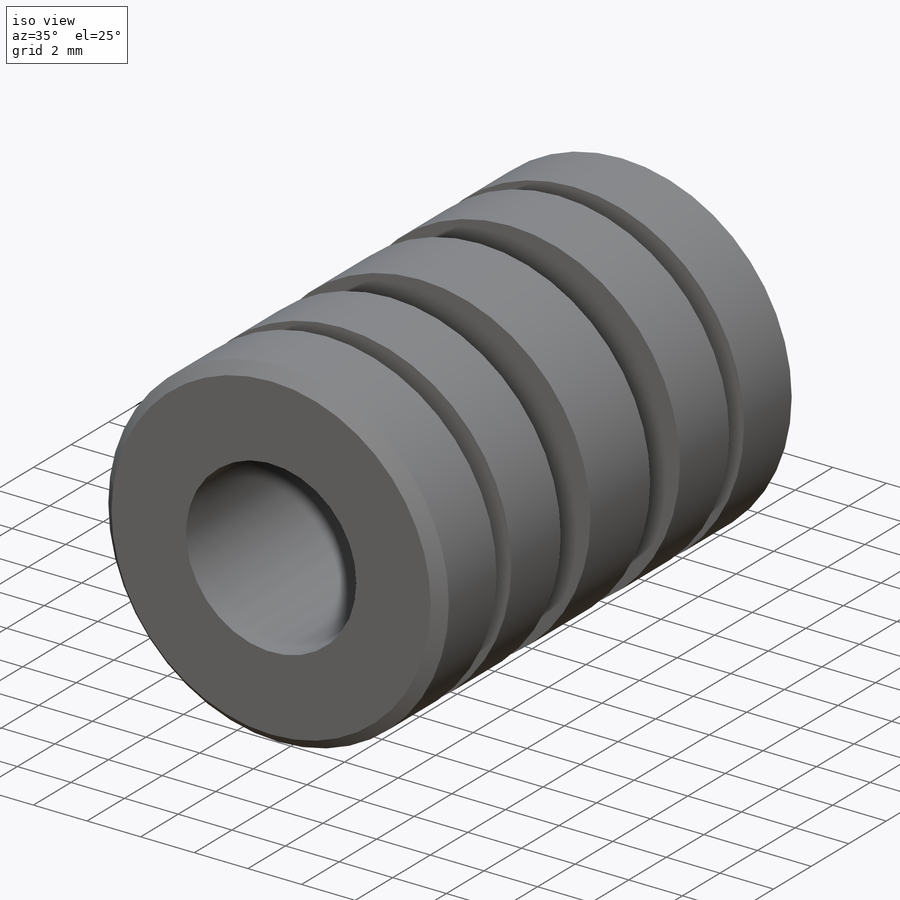
[diagram: iso view]
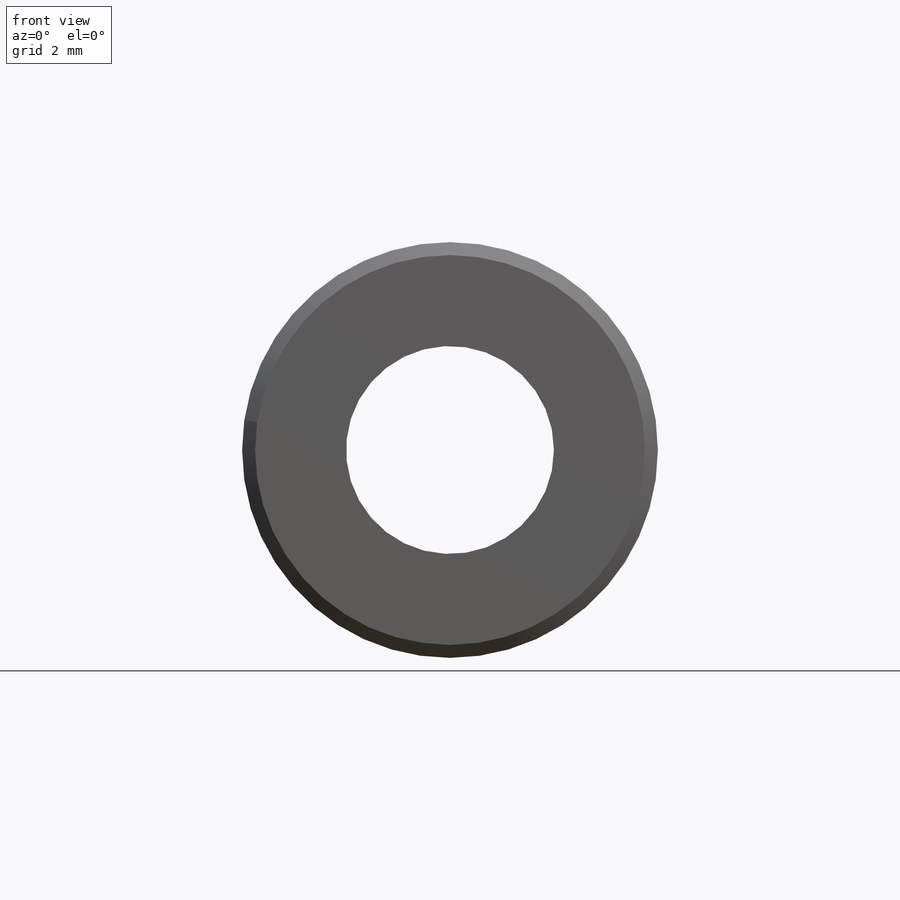
[diagram: front view]
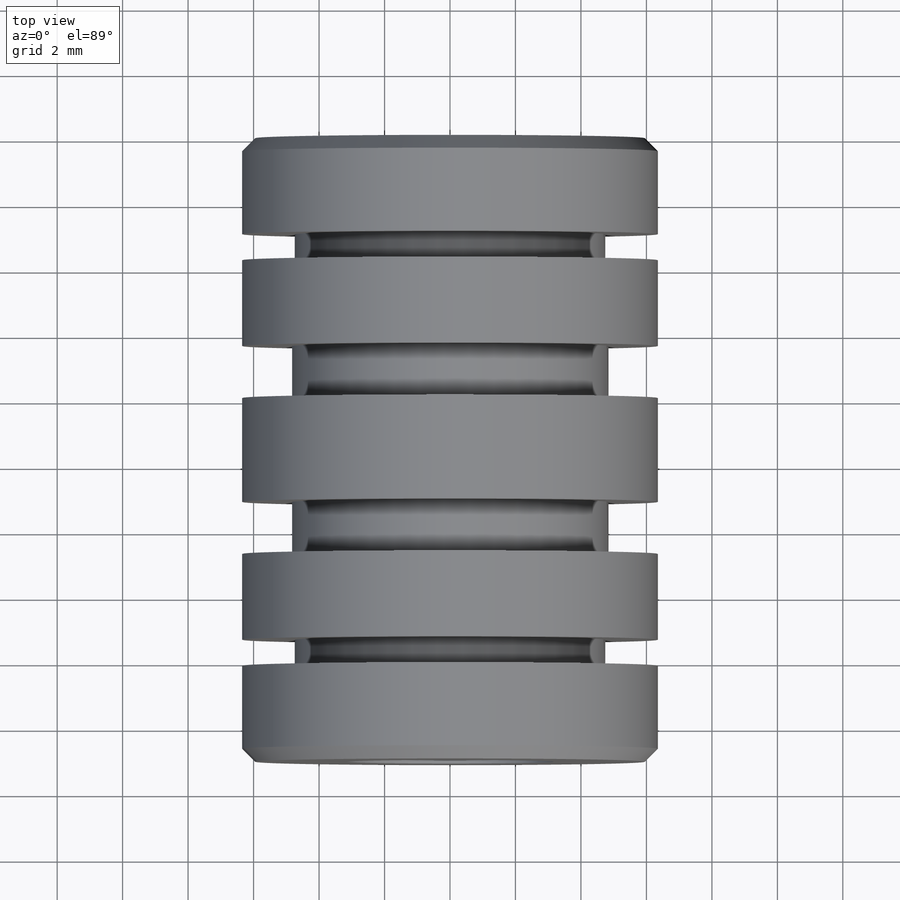
[diagram: top view]
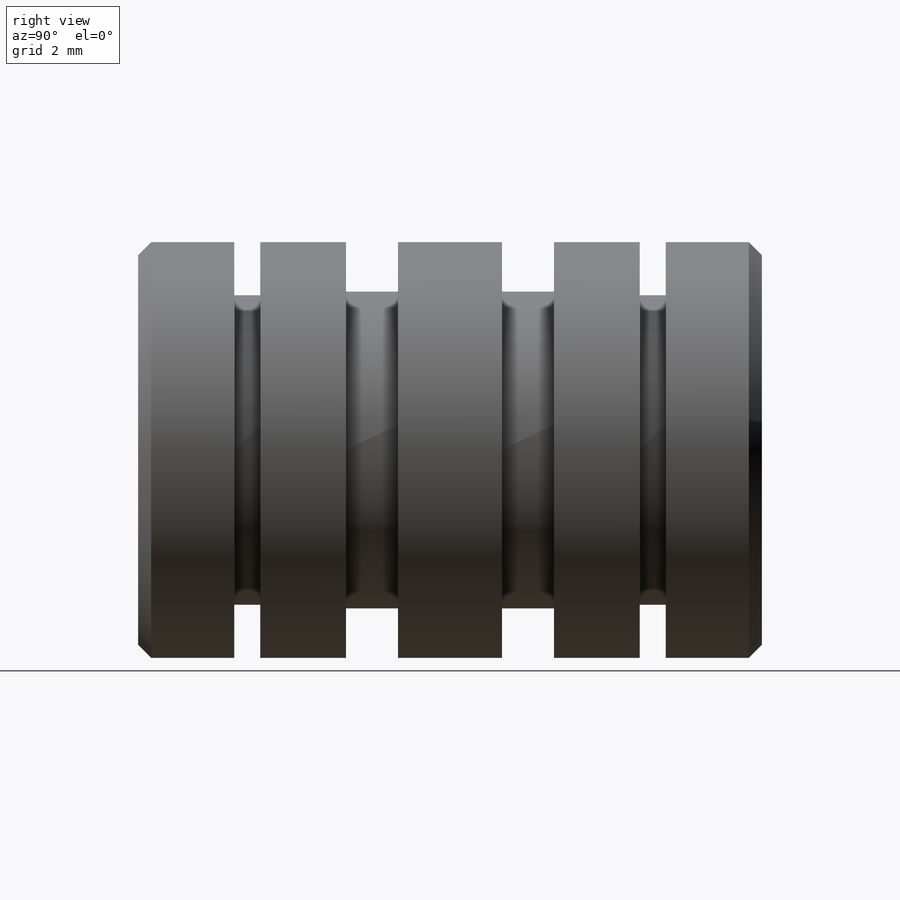
[diagram: right view]
SOLIDWORKS PART (.sldprt)
format: sldprt  version: not decoded by parser v0  size: 218,624 bytes
history: native  units: mm
features: sketch x4, cut_revolve x2, material x1, extrude x1, cut_extrude x1, chamfer x1 (+12 scaffold rows collapsed)
feature tree (22):
  scaffold x12  (default folders/planes/origin — collapsed)
  material  "Material <not specified>"
  sketch  "Sketch2"  dims[D1=12.7mm]
  extrude  "Boss-Extrude1"  Depth=19.05mm
  sketch  "Sketch3"  dims[D1=6.35mm]
  cut_extrude  "Cut-Extrude1"  [1 undecoded]
  sketch  "Sketch4"  dims[c1.D1=11.1125mm c1.D2=11.1125mm c1.D3=3.175mm c2.D1=13.1826mm c2.D2=19.05mm c3.D2=0.125deg c3.D3=~0.79375mm c3.D4=19.05mm]
  cut_revolve  "Cut-Revolve1"  Angle=360deg
  sketch  "Sketch5"  dims[D1=6.35mm D2=1.5875mm]
  chamfer  "Chamfer1"  Distance=0.396875mm Angle=45deg
  cut_revolve  "Cut-Revolve2"  Angle=360deg
decode coverage: 8 of 9 modeling features carry decoded parameters
note: ~ marks probable driven/reference dimensions
note: 1 parameter value undecoded
note: suppression state not decoded; provenance and decode notes live in map.json
